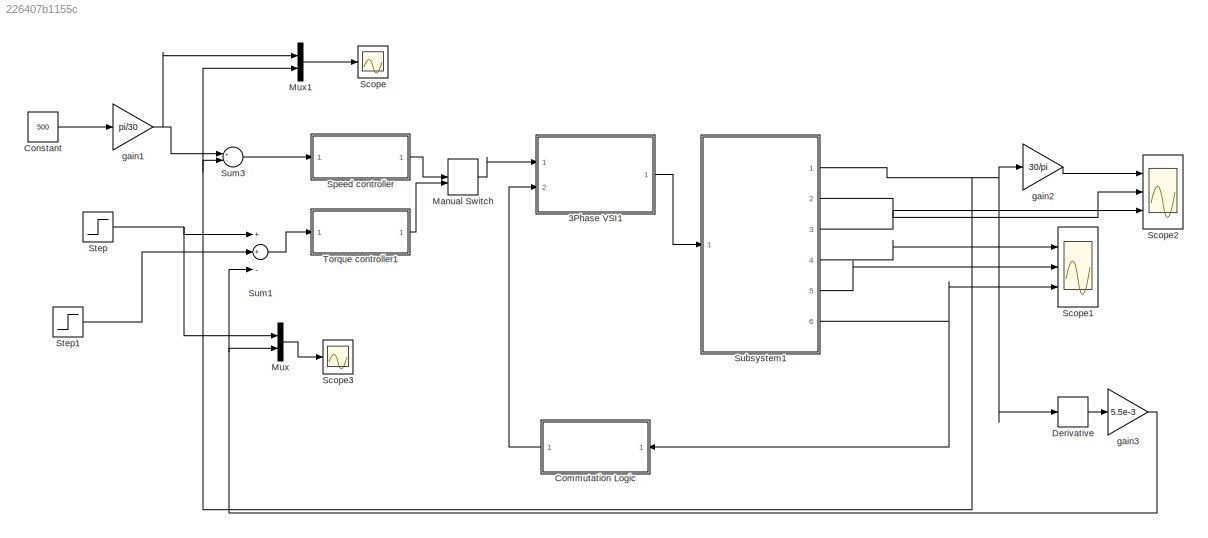
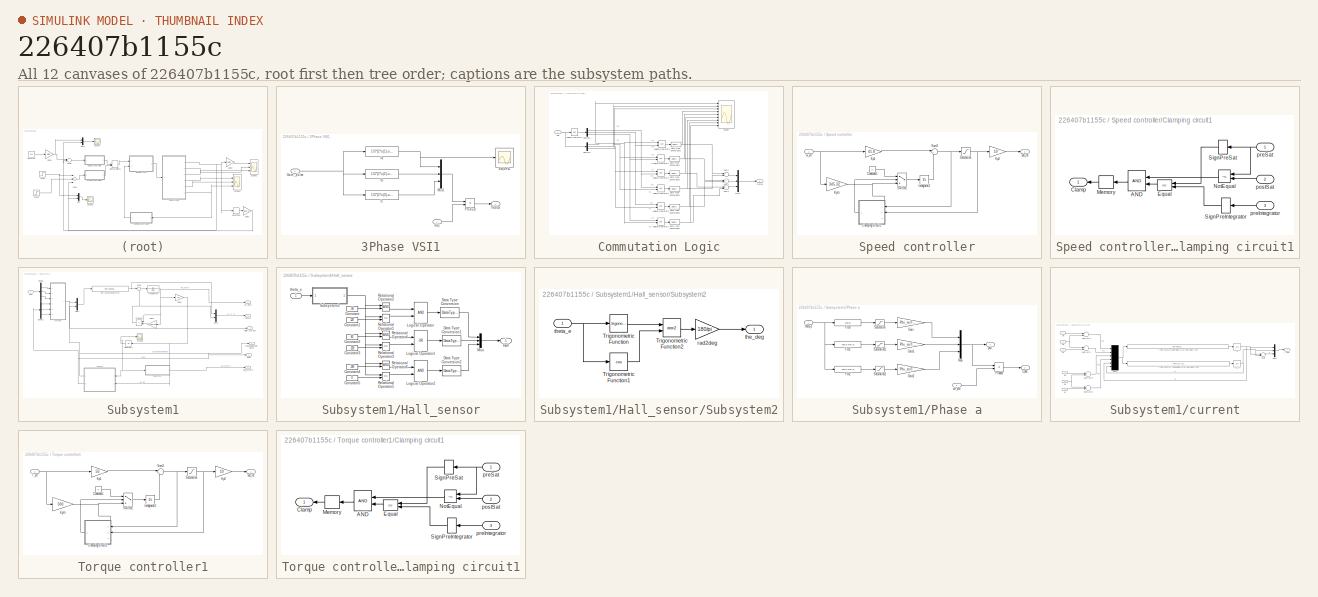
[diagram: thumbnail index - all 12 canvases of the model, root first then tree order]
MODEL slx_226407b1155c
KIND model
BLOCK [SubSystem] 3Phase VSI1
  Ports = [2, 1]
  RequestExecContextInheritance = off
BLOCK [Inport] 3Phase VSI1/Gate_pulse
  IconDisplay = Port number
  Port = 2
BLOCK [Mux] 3Phase VSI1/Mux1
  DisplayOption = bar
  Inputs = 3
  Ports = [3, 1]
BLOCK [Product] 3Phase VSI1/Product
  InputSameDT = off
  OutDataTypeStr = Inherit: Inherit via internal rule
  Ports = [2, 1]
  RndMeth = Floor
  SaturateOnIntegerOverflow = off
BLOCK [Scope] 3Phase VSI1/Scopes1
  DataFormat = StructureWithTime
  Floating = off
  LimitDataPoints = off
  NumInputPorts = 1
  Ports = [1]
  SampleTime = 0
  SaveName = ScopeData5
  SaveToWorkspace = on
  ShowLegends = off
  TimeRange = 0.04
  YMax = 40
  YMin = -40
  ZoomMode = yonly
BLOCK [Outport] 3Phase VSI1/VabcS
  IconDisplay = Port number
BLOCK [Inport] 3Phase VSI1/Vdc
  IconDisplay = Port number
BLOCK [Fcn] 3Phase VSI1/fa
  Expr = 1/3*(2*u(1)-u(2)-u(3))
BLOCK [Fcn] 3Phase VSI1/fb
  Expr = 1/3*(2*u(2)-u(1)-u(3))
BLOCK [Fcn] 3Phase VSI1/fc
  Expr = 1/3*(2*u(3)-u(1)-u(2))
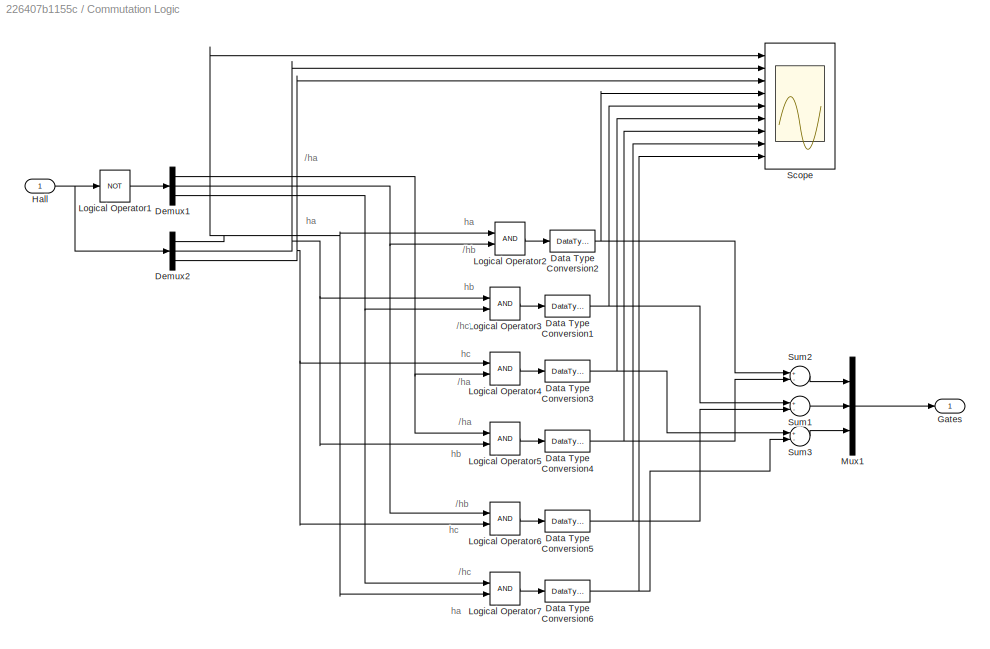
BLOCK [SubSystem] Commutation Logic
  Ports = [1, 1]
  RequestExecContextInheritance = off
BLOCK [DataTypeConversion] Commutation Logic/Data Type Conversion1
  RndMeth = Floor
  SaturateOnIntegerOverflow = off
BLOCK [DataTypeConversion] Commutation Logic/Data Type Conversion2
  RndMeth = Floor
  SaturateOnIntegerOverflow = off
BLOCK [DataTypeConversion] Commutation Logic/Data Type Conversion3
  RndMeth = Floor
  SaturateOnIntegerOverflow = off
BLOCK [DataTypeConversion] Commutation Logic/Data Type Conversion4
  RndMeth = Floor
  SaturateOnIntegerOverflow = off
BLOCK [DataTypeConversion] Commutation Logic/Data Type Conversion5
  RndMeth = Floor
  SaturateOnIntegerOverflow = off
BLOCK [DataTypeConversion] Commutation Logic/Data Type Conversion6
  RndMeth = Floor
  SaturateOnIntegerOverflow = off
BLOCK [Demux] Commutation Logic/Demux1
  DisplayOption = bar
  Outputs = 3
  Ports = [1, 3]
BLOCK [Demux] Commutation Logic/Demux2
  DisplayOption = bar
  Outputs = 3
  Ports = [1, 3]
BLOCK [Outport] Commutation Logic/Gates
  IconDisplay = Port number
BLOCK [Inport] Commutation Logic/Hall 
  IconDisplay = Port number
BLOCK [Logic] Commutation Logic/Logical Operator1
  AllPortsSameDT = off
  Operator = NOT
  OutDataTypeStr = boolean
  Ports = [1, 1]
BLOCK [Logic] Commutation Logic/Logical Operator2
  AllPortsSameDT = off
  OutDataTypeStr = boolean
  Ports = [2, 1]
BLOCK [Logic] Commutation Logic/Logical Operator3
  AllPortsSameDT = off
  OutDataTypeStr = boolean
  Ports = [2, 1]
BLOCK [Logic] Commutation Logic/Logical Operator4
  AllPortsSameDT = off
  OutDataTypeStr = boolean
  Ports = [2, 1]
BLOCK [Logic] Commutation Logic/Logical Operator5
  AllPortsSameDT = off
  OutDataTypeStr = boolean
  Ports = [2, 1]
BLOCK [Logic] Commutation Logic/Logical Operator6
  AllPortsSameDT = off
  OutDataTypeStr = boolean
  Ports = [2, 1]
BLOCK [Logic] Commutation Logic/Logical Operator7
  AllPortsSameDT = off
  OutDataTypeStr = boolean
  Ports = [2, 1]
BLOCK [Mux] Commutation Logic/Mux1
  DisplayOption = bar
  Inputs = 3
  Ports = [3, 1]
BLOCK [Scope] Commutation Logic/Scope
  Floating = off
  LimitDataPoints = off
  NumInputPorts = 9
  Ports = [9]
  SaveName = ScopeData4
  ShowLegends = off
  YMax = 1~1~1~1~1~1~1~1~1
  YMin = 0~0~0~0~0~0~0~0~0
BLOCK [Sum] Commutation Logic/Sum1
  InputSameDT = off
  Inputs = +-
  OutDataTypeStr = double
  Ports = [2, 1]
  SaturateOnIntegerOverflow = off
BLOCK [Sum] Commutation Logic/Sum2
  InputSameDT = off
  Inputs = +-
  OutDataTypeStr = double
  Ports = [2, 1]
  SaturateOnIntegerOverflow = off
BLOCK [Sum] Commutation Logic/Sum3
  InputSameDT = off
  Inputs = +-
  OutDataTypeStr = double
  Ports = [2, 1]
  SaturateOnIntegerOverflow = off
BLOCK [Constant] Constant
  Value = 500
BLOCK [Derivative] Derivative
BLOCK [ManualSwitch] Manual Switch
BLOCK [Mux] Mux
  DisplayOption = bar
  Inputs = 2
  Ports = [2, 1]
BLOCK [Mux] Mux1
  DisplayOption = bar
  Inputs = 2
  Ports = [2, 1]
BLOCK [Scope] Scope
  Floating = off
  LimitDataPoints = off
  NumInputPorts = 1
  Ports = [1]
  SaveName = ScopeData3
  ShowLegends = off
BLOCK [Scope] Scope1
  DataFormat = StructureWithTime
  Floating = off
  LimitDataPoints = off
  NumInputPorts = 3
  Ports = [3]
  SampleTime = 0
  SaveName = ScopeData1
  ShowLegends = off
  YMax = 75~110~1.2
  YMin = -75~-110~-0.2
  ZoomMode = yonly
BLOCK [Scope] Scope2
  DataFormat = StructureWithTime
  Floating = off
  LimitDataPoints = off
  NumInputPorts = 3
  Ports = [3]
  SampleTime = 0
  ShowLegends = off
  YMax = 75~2.5~20
  YMin = -75~-3~-15
BLOCK [Scope] Scope3
  Floating = off
  LimitDataPoints = off
  NumInputPorts = 1
  Ports = [1]
  SaveName = ScopeData2
  ShowLegends = off
  YMax = 1
  YMin = 0
BLOCK [SubSystem] Speed controller
  Ports = [1, 1]
  RequestExecContextInheritance = off
BLOCK [SubSystem] Speed controller/Clamping circuit1
  Ports = [3, 1]
  RequestExecContextInheritance = off
BLOCK [Logic] Speed controller/Clamping circuit1/AND
  DisableCoverage = on
  OutDataTypeStr = boolean
  Ports = [2, 1]
BLOCK [Outport] Speed controller/Clamping circuit1/Clamp
  IconDisplay = Port number
BLOCK [RelationalOperator] Speed controller/Clamping circuit1/Equal
  DisableCoverage = on
  Operator = ==
  OutDataTypeStr = boolean
  Ports = [2, 1]
BLOCK [Memory] Speed controller/Clamping circuit1/Memory
BLOCK [RelationalOperator] Speed controller/Clamping circuit1/NotEqual
  DisableCoverage = on
  Operator = ~=
  OutDataTypeStr = boolean
  Ports = [2, 1]
BLOCK [Signum] Speed controller/Clamping circuit1/SignPreIntegrator
  DisableCoverage = on
BLOCK [Signum] Speed controller/Clamping circuit1/SignPreSat
  DisableCoverage = on
BLOCK [Inport] Speed controller/Clamping circuit1/postSat
  IconDisplay = Port number
  Port = 2
BLOCK [Inport] Speed controller/Clamping circuit1/preIntegrator
  IconDisplay = Port number
  Port = 3
BLOCK [Inport] Speed controller/Clamping circuit1/preSat
  IconDisplay = Port number
BLOCK [Constant] Speed controller/Constant1
  DisableCoverage = on
  OutDataTypeStr = Inherit: Inherit via back propagation
  PreserveConstantTs = on
  Value = 0
BLOCK [Integrator] Speed controller/Integrator2
  Ports = [1, 1]
BLOCK [Gain] Speed controller/Kp//ti
  Gain = 345.32
  OutDataTypeStr = Inherit: Inherit via internal rule
  ParamDataTypeStr = Inherit: Inherit via internal rule
  SaturateOnIntegerOverflow = off
BLOCK [Gain] Speed controller/Kp1
  Gain = 41.8
  OutDataTypeStr = Inherit: Inherit via internal rule
  ParamDataTypeStr = Inherit: Inherit via internal rule
  SaturateOnIntegerOverflow = off
BLOCK [Gain] Speed controller/Kp2
  Gain = 10
  OutDataTypeStr = Inherit: Inherit via internal rule
  ParamDataTypeStr = Inherit: Inherit via internal rule
  SaturateOnIntegerOverflow = off
BLOCK [Saturate] Speed controller/Saturation
  InputPortMap = u0
  LowerLimit = -15
  Ports = [1, 1]
  UpperLimit = 15
BLOCK [Sum] Speed controller/Sum3
  IconShape = round
  InputSameDT = off
  Inputs = |++
  OutDataTypeStr = Inherit: Inherit via internal rule
  Ports = [2, 1]
  SaturateOnIntegerOverflow = off
BLOCK [Switch] Speed controller/Switch1
  Criteria = u2 > Threshold
  DisableCoverage = on
  SaturateOnIntegerOverflow = off
BLOCK [Outport] Speed controller/vdc_ref
  IconDisplay = Port number
BLOCK [Inport] Speed controller/w_err
  IconDisplay = Port number
BLOCK [Step] Step
  After = 2
  SampleTime = 0
  Time = 0.5
BLOCK [Step] Step1
  After = -1
  SampleTime = 0
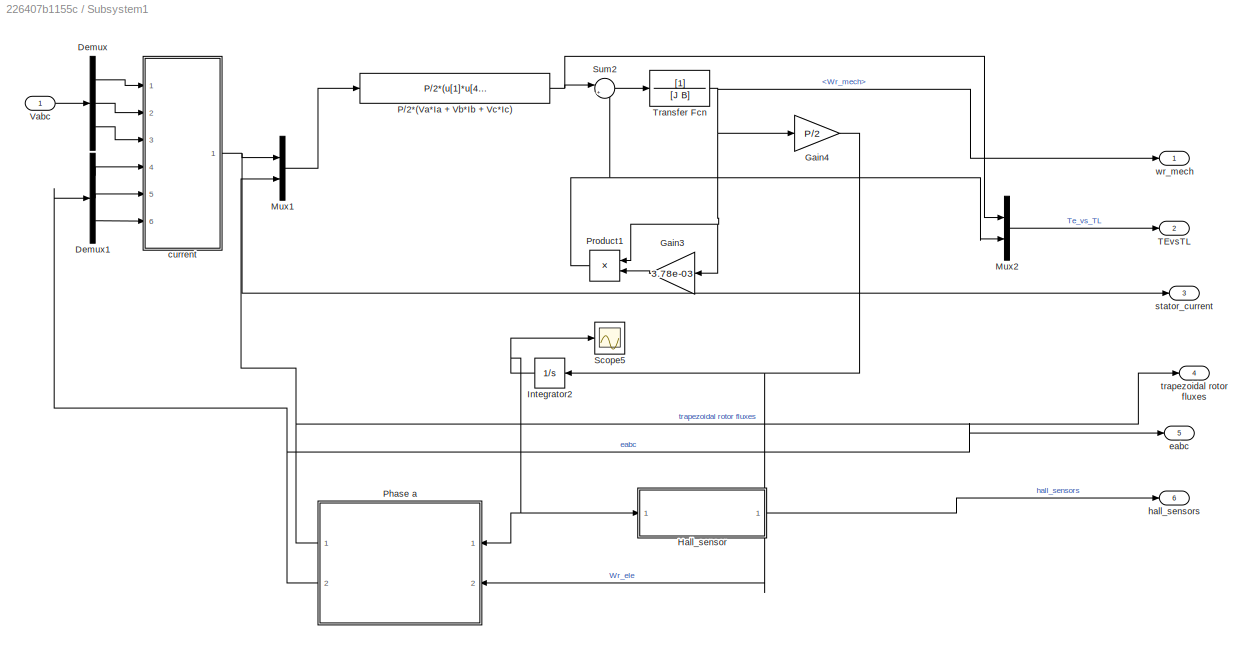
BLOCK [SubSystem] Subsystem1
  Ports = [1, 6]
  RequestExecContextInheritance = off
BLOCK [Demux] Subsystem1/Demux
  DisplayOption = bar
  Outputs = 3
  Ports = [1, 3]
BLOCK [Demux] Subsystem1/Demux1
  DisplayOption = bar
  Outputs = 3
  Ports = [1, 3]
BLOCK [Gain] Subsystem1/Gain3
  Gain = 3.78e-03
  OutDataTypeStr = Inherit: Inherit via internal rule
  ParamDataTypeStr = Inherit: Inherit via internal rule
  SaturateOnIntegerOverflow = off
BLOCK [Gain] Subsystem1/Gain4
  Gain = P/2
  OutDataTypeStr = Inherit: Inherit via internal rule
  ParamDataTypeStr = Inherit: Inherit via internal rule
  SaturateOnIntegerOverflow = off
BLOCK [SubSystem] Subsystem1/Hall_sensor
  Ports = [1, 1]
  RequestExecContextInheritance = off
BLOCK [Constant] Subsystem1/Hall_sensor/Constant
  Value = -60
BLOCK [Constant] Subsystem1/Hall_sensor/Constant1
  Value = 120
BLOCK [Constant] Subsystem1/Hall_sensor/Constant2
  Value = 60
BLOCK [Constant] Subsystem1/Hall_sensor/Constant3
  Value = -120
BLOCK [Constant] Subsystem1/Hall_sensor/Constant4
  Value = -180
BLOCK [Constant] Subsystem1/Hall_sensor/Constant5
  Value = 0
BLOCK [DataTypeConversion] Subsystem1/Hall_sensor/Data Type Conversion
  OutDataTypeStr = double
BLOCK [DataTypeConversion] Subsystem1/Hall_sensor/Data Type Conversion1
  OutDataTypeStr = double
BLOCK [DataTypeConversion] Subsystem1/Hall_sensor/Data Type Conversion2
  OutDataTypeStr = double
BLOCK [Outport] Subsystem1/Hall_sensor/Hall
  IconDisplay = Port number
BLOCK [Logic] Subsystem1/Hall_sensor/Logical Operator
  AllPortsSameDT = off
  OutDataTypeStr = boolean
  Ports = [2, 1]
BLOCK [Logic] Subsystem1/Hall_sensor/Logical Operator1
  AllPortsSameDT = off
  Operator = OR
  OutDataTypeStr = boolean
  Ports = [2, 1]
BLOCK [Logic] Subsystem1/Hall_sensor/Logical Operator2
  AllPortsSameDT = off
  OutDataTypeStr = boolean
  Ports = [2, 1]
BLOCK [Mux] Subsystem1/Hall_sensor/Mux
  DisplayOption = bar
  Inputs = 3
  Ports = [3, 1]
BLOCK [RelationalOperator] Subsystem1/Hall_sensor/Relational Operator1
  Operator = <=
  Ports = [2, 1]
BLOCK [RelationalOperator] Subsystem1/Hall_sensor/Relational Operator2
  Ports = [2, 1]
BLOCK [RelationalOperator] Subsystem1/Hall_sensor/Relational Operator3
  Operator = <=
  Ports = [2, 1]
BLOCK [RelationalOperator] Subsystem1/Hall_sensor/Relational Operator4
  Ports = [2, 1]
BLOCK [RelationalOperator] Subsystem1/Hall_sensor/Relational Operator5
  Operator = <=
  Ports = [2, 1]
BLOCK [RelationalOperator] Subsystem1/Hall_sensor/Relational Operator6
  Ports = [2, 1]
BLOCK [SubSystem] Subsystem1/Hall_sensor/Subsystem2
  Ports = [1, 1]
  RequestExecContextInheritance = off
BLOCK [Trigonometry] Subsystem1/Hall_sensor/Subsystem2/Trigonometric Function
  Ports = [1, 1]
BLOCK [Trigonometry] Subsystem1/Hall_sensor/Subsystem2/Trigonometric Function1
  Operator = cos
  Ports = [1, 1]
BLOCK [Trigonometry] Subsystem1/Hall_sensor/Subsystem2/Trigonometric Function2
  Operator = atan2
  Ports = [2, 1]
BLOCK [Gain] Subsystem1/Hall_sensor/Subsystem2/rad2deg
  Gain = 180/pi
BLOCK [Outport] Subsystem1/Hall_sensor/Subsystem2/the_deg
  IconDisplay = Port number
BLOCK [Inport] Subsystem1/Hall_sensor/Subsystem2/theta_e
  IconDisplay = Port number
BLOCK [Inport] Subsystem1/Hall_sensor/theta_e
  IconDisplay = Port number
BLOCK [Integrator] Subsystem1/Integrator2
  Ports = [1, 1]
BLOCK [Mux] Subsystem1/Mux1
  DisplayOption = bar
  Inputs = 2
  Ports = [2, 1]
BLOCK [Mux] Subsystem1/Mux2
  DisplayOption = bar
  Inputs = 2
  Ports = [2, 1]
BLOCK [Fcn] Subsystem1/P//2*(Va*Ia + Vb*Ib + Vc*Ic)
  Expr = P/2*(u[1]*u[4]+u[2]*u[5]+u[3]*u[6])
BLOCK [SubSystem] Subsystem1/Phase a
  Ports = [2, 2]
  RequestExecContextInheritance = off
BLOCK [Fcn] Subsystem1/Phase a/Fcn1
  Expr = cos(u-2*pi/3)
BLOCK [Fcn] Subsystem1/Phase a/Fcn2
  Expr = cos(u-4*pi/3)
BLOCK [Fcn] Subsystem1/Phase a/Fcn3
  Expr = cos(u)
BLOCK [Gain] Subsystem1/Phase a/Gain
  Gain = Phi_m/Trap
  OutDataTypeStr = Inherit: Inherit via internal rule
  ParamDataTypeStr = Inherit: Inherit via internal rule
  SaturateOnIntegerOverflow = off
BLOCK [Gain] Subsystem1/Phase a/Gain1
  Gain = Phi_m/Trap
  OutDataTypeStr = Inherit: Inherit via internal rule
  ParamDataTypeStr = Inherit: Inherit via internal rule
  SaturateOnIntegerOverflow = off
BLOCK [Gain] Subsystem1/Phase a/Gain2
  Gain = Phi_m/Trap
  OutDataTypeStr = Inherit: Inherit via internal rule
  ParamDataTypeStr = Inherit: Inherit via internal rule
  SaturateOnIntegerOverflow = off
BLOCK [Mux] Subsystem1/Phase a/Mux
  DisplayOption = bar
  Inputs = 3
  Ports = [3, 1]
BLOCK [Product] Subsystem1/Phase a/Product
  InputSameDT = off
  OutDataTypeStr = Inherit: Inherit via internal rule
  Ports = [2, 1]
  RndMeth = Floor
  SaturateOnIntegerOverflow = off
BLOCK [Saturate] Subsystem1/Phase a/Saturation
  InputPortMap = u0
  LowerLimit = -Trap
  Ports = [1, 1]
  UpperLimit = Trap
BLOCK [Saturate] Subsystem1/Phase a/Saturation1
  InputPortMap = u0
  LowerLimit = -Trap
  Ports = [1, 1]
  UpperLimit = Trap
BLOCK [Saturate] Subsystem1/Phase a/Saturation2
  InputPortMap = u0
  LowerLimit = -Trap
  Ports = [1, 1]
  UpperLimit = Trap
BLOCK [Outport] Subsystem1/Phase a/e_abc
  IconDisplay = Port number
  Port = 2
BLOCK [Outport] Subsystem1/Phase a/phir'
  IconDisplay = Port number
BLOCK [Inport] Subsystem1/Phase a/theta_e
  IconDisplay = Port number
BLOCK [Inport] Subsystem1/Phase a/wr_ele
  IconDisplay = Port number
  Port = 2
BLOCK [Product] Subsystem1/Product1
  InputSameDT = off
  OutDataTypeStr = Inherit: Inherit via internal rule
  Ports = [2, 1]
  RndMeth = Floor
  SaturateOnIntegerOverflow = off
BLOCK [Scope] Subsystem1/Scope5
  DataFormat = StructureWithTime
  Floating = off
  LimitDataPoints = off
  NumInputPorts = 1
  Ports = [1]
  SampleTime = 0
  SaveName = ScopeData6
  ShowLegends = off
  TimeRange = 2
  YMax = 24.1
  YMin = 22.7
  ZoomMode = yonly
BLOCK [Sum] Subsystem1/Sum2
  IconShape = round
  InputSameDT = off
  Inputs = |+-
  OutDataTypeStr = Inherit: Inherit via internal rule
  Ports = [2, 1]
  SaturateOnIntegerOverflow = off
BLOCK [Outport] Subsystem1/TEvsTL
  IconDisplay = Port number
  Port = 2
BLOCK [TransferFcn] Subsystem1/Transfer Fcn
  Denominator = [J B]
BLOCK [Inport] Subsystem1/Vabc
  IconDisplay = Port number
BLOCK [SubSystem] Subsystem1/current
  Ports = [6, 1]
  RequestExecContextInheritance = off
BLOCK [Fcn] Subsystem1/current/(-Rs*Ia+2//3*(Vab-Eab)+1//3*(Vbc-Ebc))//Lls
  Expr = (-Rs*u(5)+2/3*u(1)-2/3*u(3)+1/3*u(2)-1/3*u(4))/Lls
BLOCK [Fcn] Subsystem1/current/(-Rs*Ib+1//3*(-Vab+Eab)+1//3*(Vbc-Ebc))//Lls
  Expr = (-Rs*u(6)-1/3*u(1)+1/3*u(3)+1/3*u(2)-1/3*u(4))/Lls
BLOCK [Outport] Subsystem1/current/I_abc
  IconDisplay = Port number
BLOCK [Mux] Subsystem1/current/Mux1
  DisplayOption = bar
  Inputs = 3
  Ports = [3, 1]
BLOCK [Mux] Subsystem1/current/Mux2
  DisplayOption = signals
  Inputs = 6
  Ports = [6, 1]
BLOCK [Sum] Subsystem1/current/Subtract1
  InputSameDT = off
  Inputs = +-
  OutDataTypeStr = Inherit: Inherit via internal rule
  Ports = [2, 1]
  SaturateOnIntegerOverflow = off
BLOCK [Sum] Subsystem1/current/Subtract2
  InputSameDT = off
  Inputs = +-
  OutDataTypeStr = Inherit: Inherit via internal rule
  Ports = [2, 1]
  SaturateOnIntegerOverflow = off
BLOCK [Sum] Subsystem1/current/Subtract3
  InputSameDT = off
  Inputs = +-
  OutDataTypeStr = Inherit: Inherit via internal rule
  Ports = [2, 1]
  SaturateOnIntegerOverflow = off
BLOCK [Sum] Subsystem1/current/Subtract4
  InputSameDT = off
  Inputs = +-
  OutDataTypeStr = Inherit: Inherit via internal rule
  Ports = [2, 1]
  SaturateOnIntegerOverflow = off
BLOCK [Sum] Subsystem1/current/Sum1
  InputSameDT = off
  Inputs = --
  OutDataTypeStr = Inherit: Inherit via internal rule
  Ports = [2, 1]
BLOCK [Inport] Subsystem1/current/Va
  IconDisplay = Port number
BLOCK [Inport] Subsystem1/current/Vb
  IconDisplay = Port number
  Port = 2
BLOCK [Inport] Subsystem1/current/Vc
  IconDisplay = Port number
  Port = 3
BLOCK [Inport] Subsystem1/current/ea
  IconDisplay = Port number
  Port = 4
BLOCK [Inport] Subsystem1/current/eb
  IconDisplay = Port number
  Port = 5
BLOCK [Inport] Subsystem1/current/ec
  IconDisplay = Port number
  Port = 6
BLOCK [Integrator] Subsystem1/current/s 
  Ports = [1, 1]
BLOCK [Integrator] Subsystem1/current/s 1
  Ports = [1, 1]
BLOCK [Outport] Subsystem1/eabc
  IconDisplay = Port number
  Port = 5
BLOCK [Outport] Subsystem1/hall_sensors
  IconDisplay = Port number
  Port = 6
BLOCK [Outport] Subsystem1/stator_current
  IconDisplay = Port number
  Port = 3
BLOCK [Outport] Subsystem1/trapezoidal rotor fluxes
  IconDisplay = Port number
  Port = 4
BLOCK [Outport] Subsystem1/wr_mech
  IconDisplay = Port number
BLOCK [Sum] Sum1
  InputSameDT = off
  Inputs = ++-
  OutDataTypeStr = Inherit: Inherit via internal rule
  Ports = [3, 1]
  SaturateOnIntegerOverflow = off
BLOCK [Sum] Sum3
  InputSameDT = off
  Inputs = +-
  OutDataTypeStr = Inherit: Inherit via internal rule
  Ports = [2, 1]
  SaturateOnIntegerOverflow = off
BLOCK [SubSystem] Torque controller1
  Ports = [1, 1]
  RequestExecContextInheritance = off
BLOCK [SubSystem] Torque controller1/Clamping circuit1
  Ports = [3, 1]
  RequestExecContextInheritance = off
BLOCK [Logic] Torque controller1/Clamping circuit1/AND
  DisableCoverage = on
  OutDataTypeStr = boolean
  Ports = [2, 1]
BLOCK [Outport] Torque controller1/Clamping circuit1/Clamp
  IconDisplay = Port number
BLOCK [RelationalOperator] Torque controller1/Clamping circuit1/Equal
  DisableCoverage = on
  Operator = ==
  OutDataTypeStr = boolean
  Ports = [2, 1]
BLOCK [Memory] Torque controller1/Clamping circuit1/Memory
BLOCK [RelationalOperator] Torque controller1/Clamping circuit1/NotEqual
  DisableCoverage = on
  Operator = ~=
  OutDataTypeStr = boolean
  Ports = [2, 1]
BLOCK [Signum] Torque controller1/Clamping circuit1/SignPreIntegrator
  DisableCoverage = on
BLOCK [Signum] Torque controller1/Clamping circuit1/SignPreSat
  DisableCoverage = on
BLOCK [Inport] Torque controller1/Clamping circuit1/postSat
  IconDisplay = Port number
  Port = 2
BLOCK [Inport] Torque controller1/Clamping circuit1/preIntegrator
  IconDisplay = Port number
  Port = 3
BLOCK [Inport] Torque controller1/Clamping circuit1/preSat
  IconDisplay = Port number
BLOCK [Constant] Torque controller1/Constant1
  DisableCoverage = on
  OutDataTypeStr = Inherit: Inherit via back propagation
  PreserveConstantTs = on
  Value = 0
BLOCK [Integrator] Torque controller1/Integrator2
  Ports = [1, 1]
BLOCK [Gain] Torque controller1/Kp//ti
  Gain = 300
  OutDataTypeStr = Inherit: Inherit via internal rule
  ParamDataTypeStr = Inherit: Inherit via internal rule
  SaturateOnIntegerOverflow = off
BLOCK [Gain] Torque controller1/Kp1
  Gain = 50
  OutDataTypeStr = Inherit: Inherit via internal rule
  ParamDataTypeStr = Inherit: Inherit via internal rule
  SaturateOnIntegerOverflow = off
BLOCK [Gain] Torque controller1/Kp2
  Gain = 10
  OutDataTypeStr = Inherit: Inherit via internal rule
  ParamDataTypeStr = Inherit: Inherit via internal rule
  SaturateOnIntegerOverflow = off
BLOCK [Saturate] Torque controller1/Saturation
  InputPortMap = u0
  LowerLimit = -15
  Ports = [1, 1]
  UpperLimit = 15
BLOCK [Sum] Torque controller1/Sum3
  IconShape = round
  InputSameDT = off
  Inputs = |++
  OutDataTypeStr = Inherit: Inherit via internal rule
  Ports = [2, 1]
  SaturateOnIntegerOverflow = off
BLOCK [Switch] Torque controller1/Switch1
  Criteria = u2 > Threshold
  DisableCoverage = on
  SaturateOnIntegerOverflow = off
BLOCK [Inport] Torque controller1/T_err
  IconDisplay = Port number
BLOCK [Outport] Torque controller1/vdc_ref
  IconDisplay = Port number
BLOCK [Gain] gain1
  Gain = pi/30
BLOCK [Gain] gain2
  Gain = 30/pi
BLOCK [Gain] gain3
  Gain = 5.5e-3
ANNOTATION Commutation Logic: /ha
ANNOTATION Commutation Logic: /hb
ANNOTATION Commutation Logic: /hc
ANNOTATION Commutation Logic: ha
ANNOTATION Commutation Logic: hb
ANNOTATION Commutation Logic: hc
NET 3Phase VSI1/Gate_pulse:1 -> 3Phase VSI1/fa:1, 3Phase VSI1/fb:1, 3Phase VSI1/fc:1
LINE 3Phase VSI1/Mux1:1 -> 3Phase VSI1/Product:1
LINE 3Phase VSI1/Product:1 -> 3Phase VSI1/VabcS:1
LINE 3Phase VSI1/Vdc:1 -> 3Phase VSI1/Product:2
NET 3Phase VSI1/fa:1 -> 3Phase VSI1/Mux1:1, 3Phase VSI1/Scopes1:1
LINE 3Phase VSI1/fb:1 -> 3Phase VSI1/Mux1:2
LINE 3Phase VSI1/fc:1 -> 3Phase VSI1/Mux1:3
LINE 3Phase VSI1:1 -> Subsystem1:1
NET Commutation Logic/Data Type Conversion1:1 -> Commutation Logic/Scope:5, Commutation Logic/Sum1:1
NET Commutation Logic/Data Type Conversion2:1 -> Commutation Logic/Scope:4, Commutation Logic/Sum2:1
NET Commutation Logic/Data Type Conversion3:1 -> Commutation Logic/Scope:6, Commutation Logic/Sum3:1
NET Commutation Logic/Data Type Conversion4:1 -> Commutation Logic/Scope:7, Commutation Logic/Sum2:2
NET Commutation Logic/Data Type Conversion5:1 -> Commutation Logic/Scope:8, Commutation Logic/Sum1:2
NET Commutation Logic/Data Type Conversion6:1 -> Commutation Logic/Scope:9, Commutation Logic/Sum3:2
NET Commutation Logic/Demux1:1 -> Commutation Logic/Logical Operator4:2, Commutation Logic/Logical Operator5:1
NET Commutation Logic/Demux1:2 -> Commutation Logic/Logical Operator2:2, Commutation Logic/Logical Operator6:1
NET Commutation Logic/Demux1:3 -> Commutation Logic/Logical Operator3:2, Commutation Logic/Logical Operator7:1
NET Commutation Logic/Demux2:1 -> Commutation Logic/Logical Operator2:1, Commutation Logic/Logical Operator7:2, Commutation Logic/Scope:1
NET Commutation Logic/Demux2:2 -> Commutation Logic/Logical Operator3:1, Commutation Logic/Logical Operator5:2, Commutation Logic/Scope:2
NET Commutation Logic/Demux2:3 -> Commutation Logic/Logical Operator4:1, Commutation Logic/Logical Operator6:2, Commutation Logic/Scope:3
NET Commutation Logic/Hall :1 -> Commutation Logic/Demux2:1, Commutation Logic/Logical Operator1:1
LINE Commutation Logic/Logical Operator1:1 -> Commutation Logic/Demux1:1
LINE Commutation Logic/Logical Operator2:1 -> Commutation Logic/Data Type Conversion2:1
LINE Commutation Logic/Logical Operator3:1 -> Commutation Logic/Data Type Conversion1:1
LINE Commutation Logic/Logical Operator4:1 -> Commutation Logic/Data Type Conversion3:1
LINE Commutation Logic/Logical Operator5:1 -> Commutation Logic/Data Type Conversion4:1
LINE Commutation Logic/Logical Operator6:1 -> Commutation Logic/Data Type Conversion5:1
LINE Commutation Logic/Logical Operator7:1 -> Commutation Logic/Data Type Conversion6:1
LINE Commutation Logic/Mux1:1 -> Commutation Logic/Gates:1
LINE Commutation Logic/Sum1:1 -> Commutation Logic/Mux1:2
LINE Commutation Logic/Sum2:1 -> Commutation Logic/Mux1:1
LINE Commutation Logic/Sum3:1 -> Commutation Logic/Mux1:3
LINE Commutation Logic:1 -> 3Phase VSI1:2
LINE Constant:1 -> gain1:1
LINE Derivative:1 -> gain3:1
LINE Manual Switch:1 -> 3Phase VSI1:1
LINE Mux1:1 -> Scope:1
LINE Mux:1 -> Scope3:1
LINE Speed controller/Clamping circuit1/AND:1 -> Speed controller/Clamping circuit1/Memory:1
LINE Speed controller/Clamping circuit1/Equal:1 -> Speed controller/Clamping circuit1/AND:2
LINE Speed controller/Clamping circuit1/Memory:1 -> Speed controller/Clamping circuit1/Clamp:1
LINE Speed controller/Clamping circuit1/NotEqual:1 -> Speed controller/Clamping circuit1/AND:1
LINE Speed controller/Clamping circuit1/SignPreIntegrator:1 -> Speed controller/Clamping circuit1/Equal:2
LINE Speed controller/Clamping circuit1/SignPreSat:1 -> Speed controller/Clamping circuit1/Equal:1
LINE Speed controller/Clamping circuit1/postSat:1 -> Speed controller/Clamping circuit1/NotEqual:2
LINE Speed controller/Clamping circuit1/preIntegrator:1 -> Speed controller/Clamping circuit1/SignPreIntegrator:1
NET Speed controller/Clamping circuit1/preSat:1 -> Speed controller/Clamping circuit1/NotEqual:1, Speed controller/Clamping circuit1/SignPreSat:1
LINE Speed controller/Clamping circuit1:1 -> Speed controller/Switch1:2
LINE Speed controller/Constant1:1 -> Speed controller/Switch1:1
LINE Speed controller/Integrator2:1 -> Speed controller/Sum3:2
NET Speed controller/Kp//ti:1 -> Speed controller/Clamping circuit1:3, Speed controller/Switch1:3
LINE Speed controller/Kp1:1 -> Speed controller/Sum3:1
LINE Speed controller/Kp2:1 -> Speed controller/vdc_ref:1
NET Speed controller/Saturation:1 -> Speed controller/Clamping circuit1:2, Speed controller/Kp2:1
NET Speed controller/Sum3:1 -> Speed controller/Clamping circuit1:1, Speed controller/Saturation:1
LINE Speed controller/Switch1:1 -> Speed controller/Integrator2:1
NET Speed controller/w_err:1 -> Speed controller/Kp//ti:1, Speed controller/Kp1:1
LINE Speed controller:1 -> Manual Switch:1
LINE Step1:1 -> Sum1:2
NET Step:1 -> Mux:1, Sum1:1
LINE Subsystem1/Demux1:1 -> Subsystem1/current:4
LINE Subsystem1/Demux1:2 -> Subsystem1/current:5
LINE Subsystem1/Demux1:3 -> Subsystem1/current:6
LINE Subsystem1/Demux:1 -> Subsystem1/current:1
LINE Subsystem1/Demux:2 -> Subsystem1/current:2
LINE Subsystem1/Demux:3 -> Subsystem1/current:3
LINE Subsystem1/Gain3:1 -> Subsystem1/Product1:2
NET Subsystem1/Gain4:1 -> Subsystem1/Integrator2:1, Subsystem1/Phase a:2
LINE Subsystem1/Hall_sensor/Constant1:1 -> Subsystem1/Hall_sensor/Relational Operator1:2
LINE Subsystem1/Hall_sensor/Constant2:1 -> Subsystem1/Hall_sensor/Relational Operator4:2
LINE Subsystem1/Hall_sensor/Constant3:1 -> Subsystem1/Hall_sensor/Relational Operator3:2
LINE Subsystem1/Hall_sensor/Constant4:1 -> Subsystem1/Hall_sensor/Relational Operator6:2
LINE Subsystem1/Hall_sensor/Constant5:1 -> Subsystem1/Hall_sensor/Relational Operator5:2
LINE Subsystem1/Hall_sensor/Constant:1 -> Subsystem1/Hall_sensor/Relational Operator2:2
LINE Subsystem1/Hall_sensor/Data Type Conversion1:1 -> Subsystem1/Hall_sensor/Mux:2
LINE Subsystem1/Hall_sensor/Data Type Conversion2:1 -> Subsystem1/Hall_sensor/Mux:3
LINE Subsystem1/Hall_sensor/Data Type Conversion:1 -> Subsystem1/Hall_sensor/Mux:1
LINE Subsystem1/Hall_sensor/Logical Operator1:1 -> Subsystem1/Hall_sensor/Data Type Conversion1:1
LINE Subsystem1/Hall_sensor/Logical Operator2:1 -> Subsystem1/Hall_sensor/Data Type Conversion2:1
LINE Subsystem1/Hall_sensor/Logical Operator:1 -> Subsystem1/Hall_sensor/Data Type Conversion:1
LINE Subsystem1/Hall_sensor/Mux:1 -> Subsystem1/Hall_sensor/Hall:1
LINE Subsystem1/Hall_sensor/Relational Operator1:1 -> Subsystem1/Hall_sensor/Logical Operator:2
LINE Subsystem1/Hall_sensor/Relational Operator2:1 -> Subsystem1/Hall_sensor/Logical Operator:1
LINE Subsystem1/Hall_sensor/Relational Operator3:1 -> Subsystem1/Hall_sensor/Logical Operator1:2
LINE Subsystem1/Hall_sensor/Relational Operator4:1 -> Subsystem1/Hall_sensor/Logical Operator1:1
LINE Subsystem1/Hall_sensor/Relational Operator5:1 -> Subsystem1/Hall_sensor/Logical Operator2:2
LINE Subsystem1/Hall_sensor/Relational Operator6:1 -> Subsystem1/Hall_sensor/Logical Operator2:1
LINE Subsystem1/Hall_sensor/Subsystem2/Trigonometric Function1:1 -> Subsystem1/Hall_sensor/Subsystem2/Trigonometric Function2:2
LINE Subsystem1/Hall_sensor/Subsystem2/Trigonometric Function2:1 -> Subsystem1/Hall_sensor/Subsystem2/rad2deg:1
LINE Subsystem1/Hall_sensor/Subsystem2/Trigonometric Function:1 -> Subsystem1/Hall_sensor/Subsystem2/Trigonometric Function2:1
LINE Subsystem1/Hall_sensor/Subsystem2/rad2deg:1 -> Subsystem1/Hall_sensor/Subsystem2/the_deg:1
NET Subsystem1/Hall_sensor/Subsystem2/theta_e:1 -> Subsystem1/Hall_sensor/Subsystem2/Trigonometric Function1:1, Subsystem1/Hall_sensor/Subsystem2/Trigonometric Function:1
NET Subsystem1/Hall_sensor/Subsystem2:1 -> Subsystem1/Hall_sensor/Relational Operator1:1, Subsystem1/Hall_sensor/Relational Operator2:1, Subsystem1/Hall_sensor/Relational Operator3:1, Subsystem1/Hall_sensor/Relational Operator4:1, Subsystem1/Hall_sensor/Relational Operator5:1, Subsystem1/Hall_sensor/Relational Operator6:1
LINE Subsystem1/Hall_sensor/theta_e:1 -> Subsystem1/Hall_sensor/Subsystem2:1
LINE Subsystem1/Hall_sensor:1 -> Subsystem1/hall_sensors:1
NET Subsystem1/Integrator2:1 -> Subsystem1/Hall_sensor:1, Subsystem1/Phase a:1, Subsystem1/Scope5:1
LINE Subsystem1/Mux1:1 -> Subsystem1/P//2*(Va*Ia + Vb*Ib + Vc*Ic):1
LINE Subsystem1/Mux2:1 -> Subsystem1/TEvsTL:1
NET Subsystem1/P//2*(Va*Ia + Vb*Ib + Vc*Ic):1 -> Subsystem1/Mux2:1, Subsystem1/Sum2:1
LINE Subsystem1/Phase a/Fcn1:1 -> Subsystem1/Phase a/Saturation1:1
LINE Subsystem1/Phase a/Fcn2:1 -> Subsystem1/Phase a/Saturation2:1
LINE Subsystem1/Phase a/Fcn3:1 -> Subsystem1/Phase a/Saturation:1
LINE Subsystem1/Phase a/Gain1:1 -> Subsystem1/Phase a/Mux:2
LINE Subsystem1/Phase a/Gain2:1 -> Subsystem1/Phase a/Mux:3
LINE Subsystem1/Phase a/Gain:1 -> Subsystem1/Phase a/Mux:1
NET Subsystem1/Phase a/Mux:1 -> Subsystem1/Phase a/Product:1, Subsystem1/Phase a/phir':1
LINE Subsystem1/Phase a/Product:1 -> Subsystem1/Phase a/e_abc:1
LINE Subsystem1/Phase a/Saturation1:1 -> Subsystem1/Phase a/Gain1:1
LINE Subsystem1/Phase a/Saturation2:1 -> Subsystem1/Phase a/Gain2:1
LINE Subsystem1/Phase a/Saturation:1 -> Subsystem1/Phase a/Gain:1
NET Subsystem1/Phase a/theta_e:1 -> Subsystem1/Phase a/Fcn1:1, Subsystem1/Phase a/Fcn2:1, Subsystem1/Phase a/Fcn3:1
LINE Subsystem1/Phase a/wr_ele:1 -> Subsystem1/Phase a/Product:2
NET Subsystem1/Phase a:1 -> Subsystem1/Mux1:2, Subsystem1/trapezoidal rotor fluxes:1
NET Subsystem1/Phase a:2 -> Subsystem1/Demux1:1, Subsystem1/eabc:1
NET Subsystem1/Product1:1 -> Subsystem1/Mux2:2, Subsystem1/Sum2:2
LINE Subsystem1/Sum2:1 -> Subsystem1/Transfer Fcn:1
NET Subsystem1/Transfer Fcn:1 -> Subsystem1/Gain3:1, Subsystem1/Gain4:1, Subsystem1/Product1:1, Subsystem1/wr_mech:1
LINE Subsystem1/Vabc:1 -> Subsystem1/Demux:1
LINE Subsystem1/current/(-Rs*Ia+2//3*(Vab-Eab)+1//3*(Vbc-Ebc))//Lls:1 -> Subsystem1/current/s :1
LINE Subsystem1/current/(-Rs*Ib+1//3*(-Vab+Eab)+1//3*(Vbc-Ebc))//Lls:1 -> Subsystem1/current/s 1:1
LINE Subsystem1/current/Mux1:1 -> Subsystem1/current/I_abc:1
NET Subsystem1/current/Mux2:1 -> Subsystem1/current/(-Rs*Ia+2//3*(Vab-Eab)+1//3*(Vbc-Ebc))//Lls:1, Subsystem1/current/(-Rs*Ib+1//3*(-Vab+Eab)+1//3*(Vbc-Ebc))//Lls:1
LINE Subsystem1/current/Subtract1:1 -> Subsystem1/current/Mux2:2
LINE Subsystem1/current/Subtract2:1 -> Subsystem1/current/Mux2:3
LINE Subsystem1/current/Subtract3:1 -> Subsystem1/current/Mux2:4
LINE Subsystem1/current/Subtract4:1 -> Subsystem1/current/Mux2:1
LINE Subsystem1/current/Sum1:1 -> Subsystem1/current/Mux1:3
LINE Subsystem1/current/Va:1 -> Subsystem1/current/Subtract4:1
NET Subsystem1/current/Vb:1 -> Subsystem1/current/Subtract1:1, Subsystem1/current/Subtract4:2
LINE Subsystem1/current/Vc:1 -> Subsystem1/current/Subtract1:2
LINE Subsystem1/current/ea:1 -> Subsystem1/current/Subtract2:1
NET Subsystem1/current/eb:1 -> Subsystem1/current/Subtract2:2, Subsystem1/current/Subtract3:1
LINE Subsystem1/current/ec:1 -> Subsystem1/current/Subtract3:2
NET Subsystem1/current/s 1:1 -> Subsystem1/current/Mux1:2, Subsystem1/current/Mux2:6, Subsystem1/current/Sum1:2
NET Subsystem1/current/s :1 -> Subsystem1/current/Mux1:1, Subsystem1/current/Mux2:5, Subsystem1/current/Sum1:1
NET Subsystem1/current:1 -> Subsystem1/Mux1:1, Subsystem1/stator_current:1
NET Subsystem1:1 -> Derivative:1, Mux1:2, Sum3:2, gain2:1
LINE Subsystem1:2 -> Scope2:2
LINE Subsystem1:3 -> Scope2:3
LINE Subsystem1:4 -> Scope1:1
LINE Subsystem1:5 -> Scope1:2
NET Subsystem1:6 -> Commutation Logic:1, Scope1:3
LINE Sum1:1 -> Torque controller1:1
LINE Sum3:1 -> Speed controller:1
LINE Torque controller1/Clamping circuit1/AND:1 -> Torque controller1/Clamping circuit1/Memory:1
LINE Torque controller1/Clamping circuit1/Equal:1 -> Torque controller1/Clamping circuit1/AND:2
LINE Torque controller1/Clamping circuit1/Memory:1 -> Torque controller1/Clamping circuit1/Clamp:1
LINE Torque controller1/Clamping circuit1/NotEqual:1 -> Torque controller1/Clamping circuit1/AND:1
LINE Torque controller1/Clamping circuit1/SignPreIntegrator:1 -> Torque controller1/Clamping circuit1/Equal:2
LINE Torque controller1/Clamping circuit1/SignPreSat:1 -> Torque controller1/Clamping circuit1/Equal:1
LINE Torque controller1/Clamping circuit1/postSat:1 -> Torque controller1/Clamping circuit1/NotEqual:2
LINE Torque controller1/Clamping circuit1/preIntegrator:1 -> Torque controller1/Clamping circuit1/SignPreIntegrator:1
NET Torque controller1/Clamping circuit1/preSat:1 -> Torque controller1/Clamping circuit1/NotEqual:1, Torque controller1/Clamping circuit1/SignPreSat:1
LINE Torque controller1/Clamping circuit1:1 -> Torque controller1/Switch1:2
LINE Torque controller1/Constant1:1 -> Torque controller1/Switch1:1
LINE Torque controller1/Integrator2:1 -> Torque controller1/Sum3:2
NET Torque controller1/Kp//ti:1 -> Torque controller1/Clamping circuit1:3, Torque controller1/Switch1:3
LINE Torque controller1/Kp1:1 -> Torque controller1/Sum3:1
LINE Torque controller1/Kp2:1 -> Torque controller1/vdc_ref:1
NET Torque controller1/Saturation:1 -> Torque controller1/Clamping circuit1:2, Torque controller1/Kp2:1
NET Torque controller1/Sum3:1 -> Torque controller1/Clamping circuit1:1, Torque controller1/Saturation:1
LINE Torque controller1/Switch1:1 -> Torque controller1/Integrator2:1
NET Torque controller1/T_err:1 -> Torque controller1/Kp//ti:1, Torque controller1/Kp1:1
LINE Torque controller1:1 -> Manual Switch:2
NET gain1:1 -> Mux1:1, Sum3:1
LINE gain2:1 -> Scope2:1
NET gain3:1 -> Mux:2, Sum1:3
note: NET lines group one-source signal fan-out (src -> all destinations, sorted); 1:1 wires keep LINE
